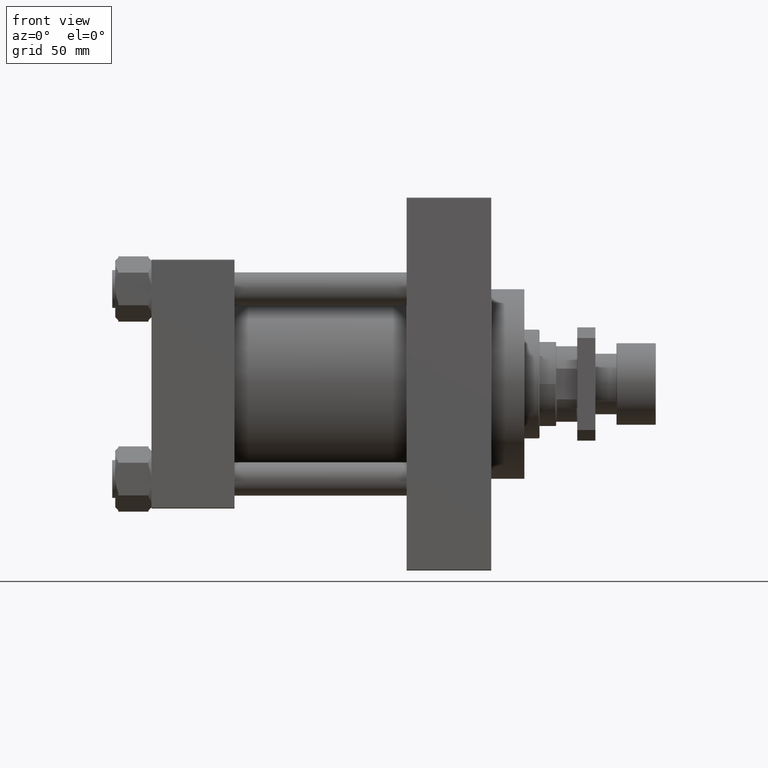
[diagram: clean part render]
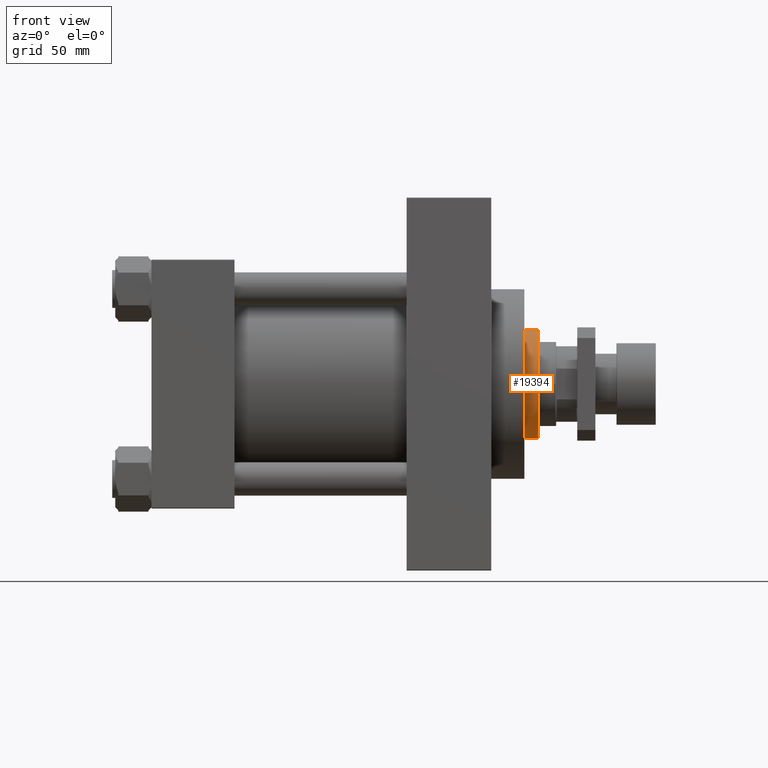
[diagram: same view with one face highlighted and labeled with its STEP entity id]
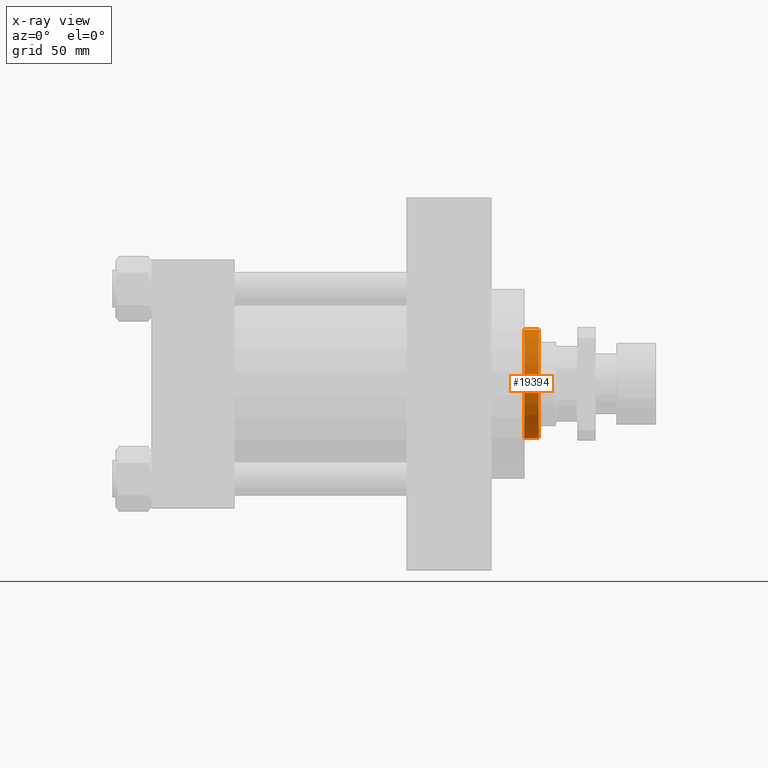
[diagram: x-ray of the same camera — body ghosted, the highlighted face saturated]
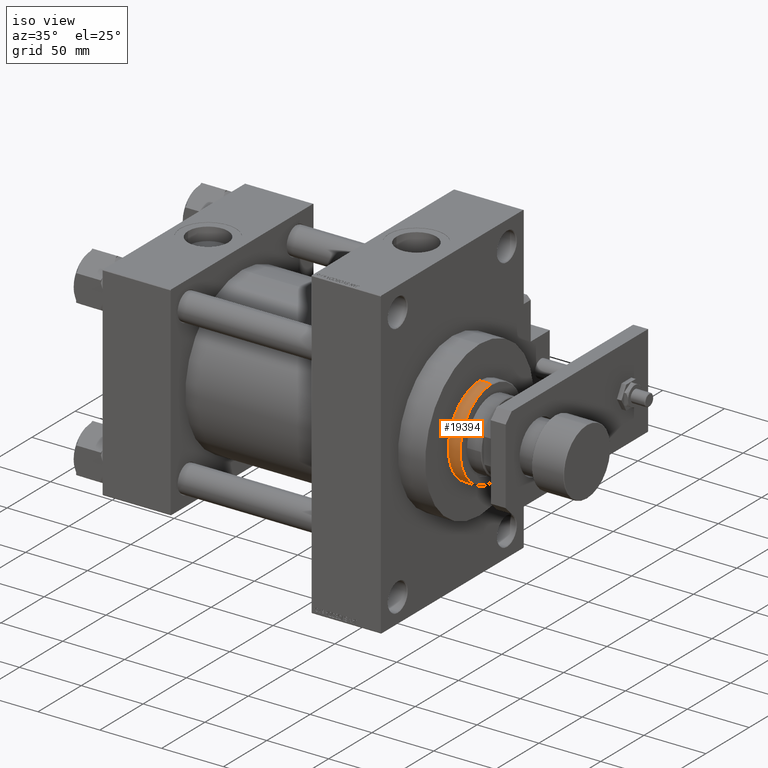
[diagram: same view with one face highlighted and labeled with its STEP entity id]
A machine part, front view. The second image highlights one B-rep face of the part: STEP entity #19394.
The next image is the same camera in x-ray: the body ghosted, the highlighted face saturated — about 0% of this face is hidden behind the body in this view.
A second angle (iso view) of the same face is appended — the face is thin or edge-on in the first view.
In plain terms, the highlighted cylindrical surface (partial cylindrical patch) has radius 36 mm, axis along (-1, -0, 0).
Its self-contained STEP definition (entity closure, byte-faithful):
#523 = VERTEX_POINT ( 'NONE', #26998 ) ;
#1029 = DIRECTION ( 'NONE',  ( 0.000000000000000000, 0.000000000000000000, 1.000000000000000000 ) ) ;
#1283 = LINE ( 'NONE', #17654, #2316 ) ;
#2316 = VECTOR ( 'NONE', #34259, 1000.000000000000000 ) ;
#3961 = DIRECTION ( 'NONE',  ( -1.000000000000000000, 0.000000000000000000, 0.000000000000000000 ) ) ;
#5055 = CIRCLE ( 'NONE', #31163, 36.00000000000000000 ) ;
#5640 = CARTESIAN_POINT ( 'NONE',  ( 36.00000000000000000, 4.408728476930470856E-15, 52.75999999999999091 ) ) ;
#6718 = LINE ( 'NONE', #39940, #14130 ) ;
#8729 = DIRECTION ( 'NONE',  ( 0.000000000000000000, 0.000000000000000000, -1.000000000000000000 ) ) ;
#9379 = EDGE_CURVE ( 'NONE', #31712, #523, #44898, .T. ) ;
#9766 = EDGE_CURVE ( 'NONE', #31712, #47168, #1283, .T. ) ;
#11380 = DIRECTION ( 'NONE',  ( -0.000000000000000000, -0.000000000000000000, -1.000000000000000000 ) ) ;
#12435 = FACE_OUTER_BOUND ( 'NONE', #42176, .T. ) ;
#14130 = VECTOR ( 'NONE', #40721, 1000.000000000000000 ) ;
#17654 = CARTESIAN_POINT ( 'NONE',  ( 36.00000000000000000, 4.408728476930470856E-15, 53.26000000000000512 ) ) ;
#18058 = ORIENTED_EDGE ( 'NONE', *, *, #9766, .F. ) ;
#18435 = CARTESIAN_POINT ( 'NONE',  ( -36.00000000000000000, 0.000000000000000000, 43.25999999999999801 ) ) ;
#19394 = ADVANCED_FACE ( 'NONE', ( #12435 ), #36410, .T. ) ;
#21245 = DIRECTION ( 'NONE',  ( 1.000000000000000000, 0.000000000000000000, 0.000000000000000000 ) ) ;
#21747 = CARTESIAN_POINT ( 'NONE',  ( 0.000000000000000000, 0.000000000000000000, 43.25999999999999801 ) ) ;
#24533 = EDGE_CURVE ( 'NONE', #523, #34977, #6718, .T. ) ;
#26858 = ORIENTED_EDGE ( 'NONE', *, *, #50325, .T. ) ;
#26998 = CARTESIAN_POINT ( 'NONE',  ( -36.00000000000000000, 0.000000000000000000, 52.75999999999999091 ) ) ;
#28518 = ORIENTED_EDGE ( 'NONE', *, *, #24533, .T. ) ;
#29629 = DIRECTION ( 'NONE',  ( 1.000000000000000000, 0.000000000000000000, 0.000000000000000000 ) ) ;
#31163 = AXIS2_PLACEMENT_3D ( 'NONE', #21747, #1029, #29629 ) ;
#31712 = VERTEX_POINT ( 'NONE', #5640 ) ;
#32989 = AXIS2_PLACEMENT_3D ( 'NONE', #45633, #11380, #3961 ) ;
#34259 = DIRECTION ( 'NONE',  ( -0.000000000000000000, -0.000000000000000000, -1.000000000000000000 ) ) ;
#34977 = VERTEX_POINT ( 'NONE', #18435 ) ;
#36410 = CYLINDRICAL_SURFACE ( 'NONE', #32989, 36.00000000000000000 ) ;
#38364 = CARTESIAN_POINT ( 'NONE',  ( 36.00000000000000000, 4.408728476930470856E-15, 43.25999999999999801 ) ) ;
#39940 = CARTESIAN_POINT ( 'NONE',  ( -36.00000000000000000, 0.000000000000000000, 53.26000000000000512 ) ) ;
#40721 = DIRECTION ( 'NONE',  ( -0.000000000000000000, -0.000000000000000000, -1.000000000000000000 ) ) ;
#42176 = EDGE_LOOP ( 'NONE', ( #18058, #42403, #28518, #26858 ) ) ;
#42403 = ORIENTED_EDGE ( 'NONE', *, *, #9379, .T. ) ;
#44898 = CIRCLE ( 'NONE', #49249, 36.00000000000000000 ) ;
#45633 = CARTESIAN_POINT ( 'NONE',  ( 0.000000000000000000, 0.000000000000000000, 53.26000000000000512 ) ) ;
#47168 = VERTEX_POINT ( 'NONE', #38364 ) ;
#49249 = AXIS2_PLACEMENT_3D ( 'NONE', #50388, #8729, #21245 ) ;
#50325 = EDGE_CURVE ( 'NONE', #34977, #47168, #5055, .T. ) ;
#50388 = CARTESIAN_POINT ( 'NONE',  ( 0.000000000000000000, 0.000000000000000000, 52.75999999999999091 ) ) ;